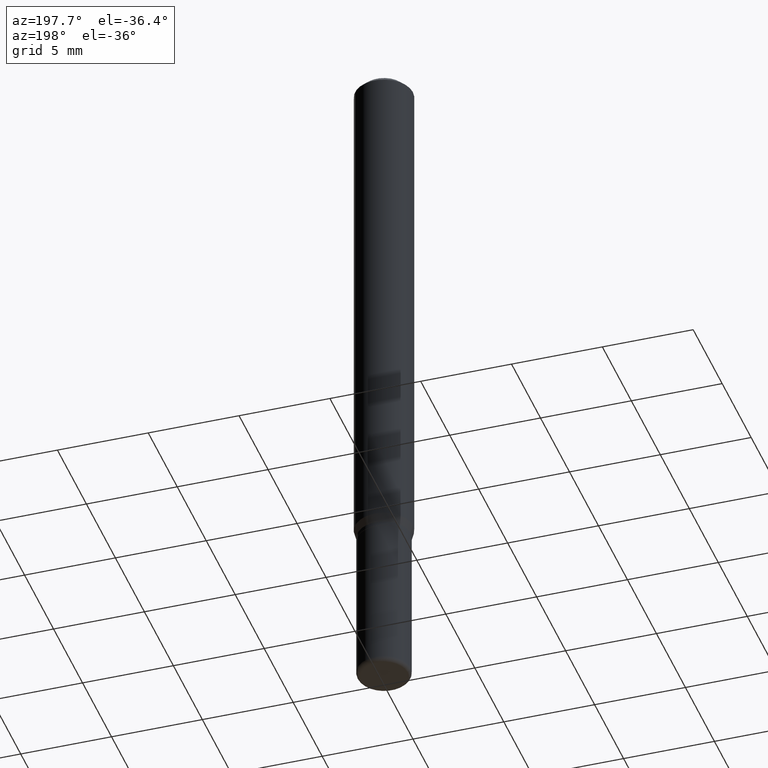
[diagram: clean part render]
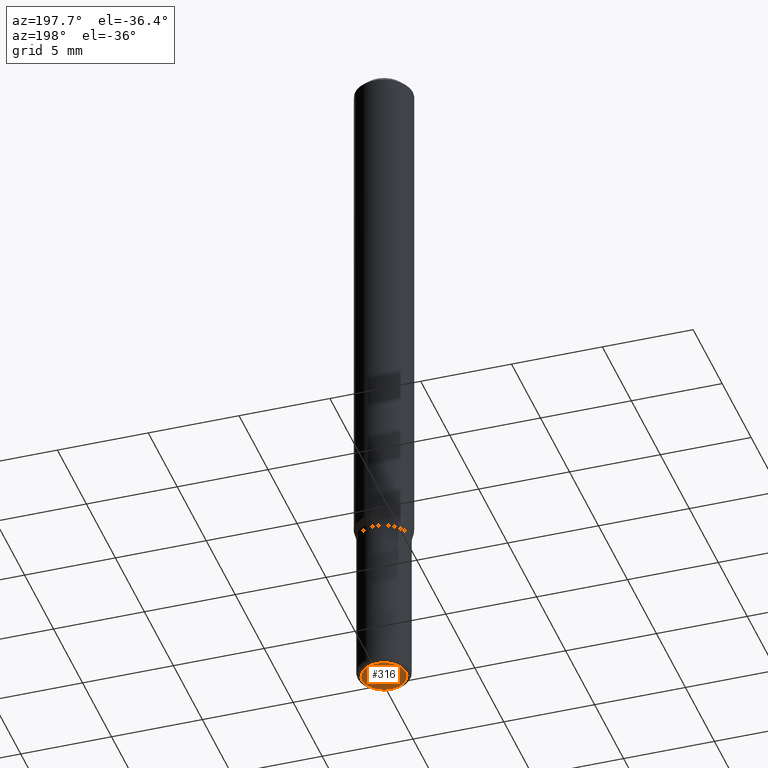
[diagram: same view with one face highlighted and labeled with its STEP entity id]
A machine part, auxiliary view. The second image highlights one B-rep face of the part: STEP entity #316.
In plain terms, the highlighted planar face has unit normal (-0, 0, 1).
Its self-contained STEP definition (entity closure, byte-faithful):
#28 = VERTEX_POINT ( 'NONE', #395 ) ;
#34 = CIRCLE ( 'NONE', #42, 0.04750000000000000749 ) ;
#42 = AXIS2_PLACEMENT_3D ( 'NONE', #388, #161, #247 ) ;
#52 = AXIS2_PLACEMENT_3D ( 'NONE', #484, #132, #291 ) ;
#61 = DIRECTION ( 'NONE',  ( -2.438088387897960049E-29, 3.491481338843145188E-15, 1.000000000000000000 ) ) ;
#132 = DIRECTION ( 'NONE',  ( -2.445468806185136597E-29, 3.491481338843145583E-15, 1.000000000000000000 ) ) ;
#150 = VERTEX_POINT ( 'NONE', #166 ) ;
#161 = DIRECTION ( 'NONE',  ( -2.445468806185136597E-29, 3.491481338843145583E-15, 1.000000000000000000 ) ) ;
#166 = CARTESIAN_POINT ( 'NONE',  ( -0.04750000000000000749, -4.846729665296451395E-15, -1.500000000000000222 ) ) ;
#184 = EDGE_CURVE ( 'NONE', #28, #150, #468, .T. ) ;
#224 = DIRECTION ( 'NONE',  ( 1.000000000000000000, -6.982962677686265922E-15, 4.876176775795935793E-29 ) ) ;
#243 = EDGE_CURVE ( 'NONE', #150, #28, #34, .T. ) ;
#247 = DIRECTION ( 'NONE',  ( 1.000000000000000000, -6.982962677686260400E-15, 0.000000000000000000 ) ) ;
#249 = ORIENTED_EDGE ( 'NONE', *, *, #243, .F. ) ;
#265 = PLANE ( 'NONE',  #373 ) ;
#291 = DIRECTION ( 'NONE',  ( 1.000000000000000000, -6.982962677686260400E-15, 0.000000000000000000 ) ) ;
#312 = FACE_OUTER_BOUND ( 'NONE', #464, .T. ) ;
#316 = ADVANCED_FACE ( 'NONE', ( #312 ), #265, .F. ) ;
#373 = AXIS2_PLACEMENT_3D ( 'NONE', #423, #61, #224 ) ;
#388 = CARTESIAN_POINT ( 'NONE',  ( 3.668203209277704895E-29, -5.237222008264718177E-15, -1.500000000000000222 ) ) ;
#395 = CARTESIAN_POINT ( 'NONE',  ( 0.04750000000000000749, -5.568912735454815688E-15, -1.500000000000000222 ) ) ;
#423 = CARTESIAN_POINT ( 'NONE',  ( 3.582686580359766038E-29, -5.359686688179453325E-15, -1.500000000000000222 ) ) ;
#464 = EDGE_LOOP ( 'NONE', ( #488, #249 ) ) ;
#468 = CIRCLE ( 'NONE', #52, 0.04750000000000000749 ) ;
#484 = CARTESIAN_POINT ( 'NONE',  ( 3.668203209277704895E-29, -5.237222008264718177E-15, -1.500000000000000222 ) ) ;
#488 = ORIENTED_EDGE ( 'NONE', *, *, #184, .F. ) ;